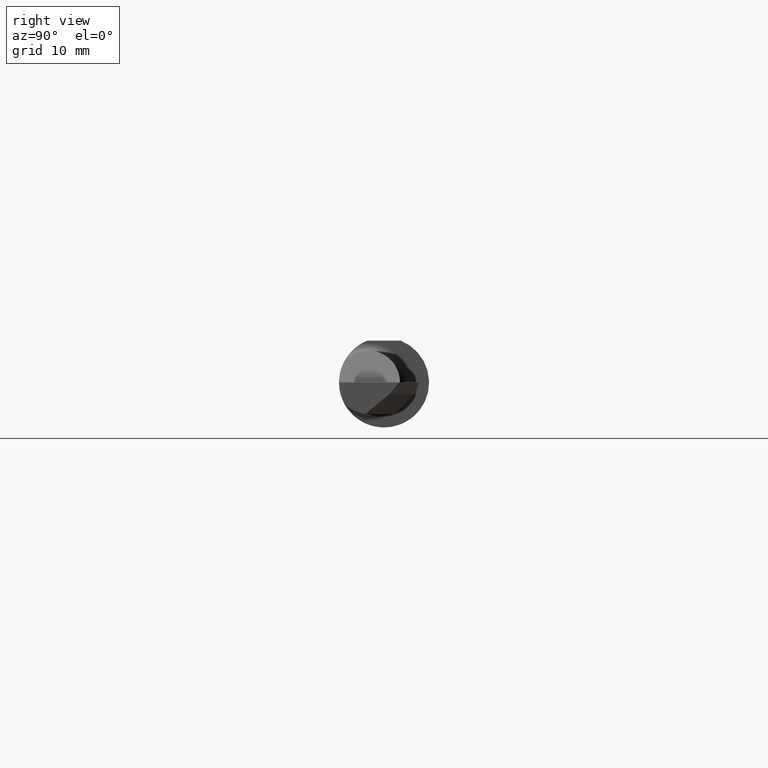
[diagram: clean part render]
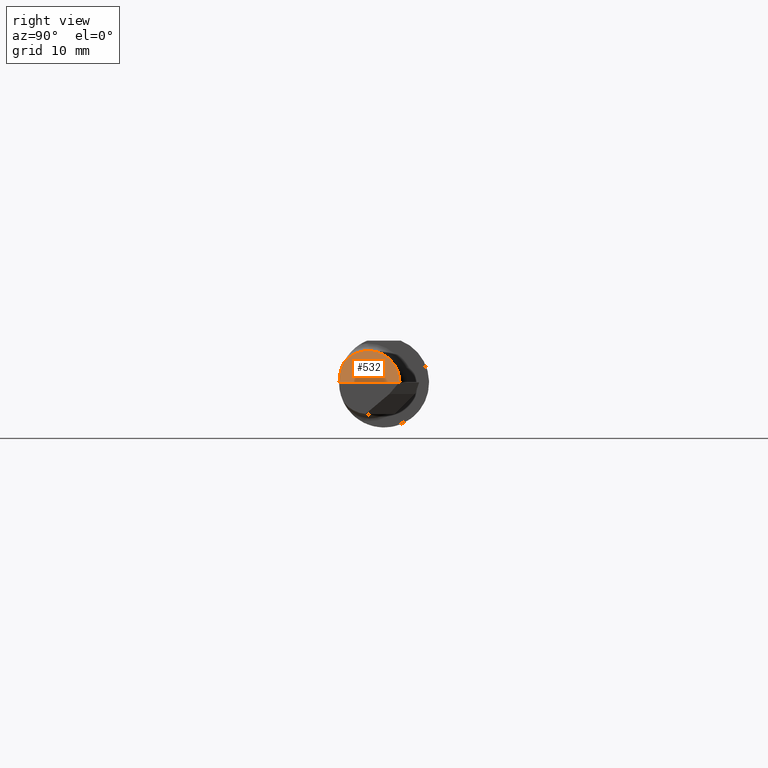
[diagram: same view with one face highlighted and labeled with its STEP entity id]
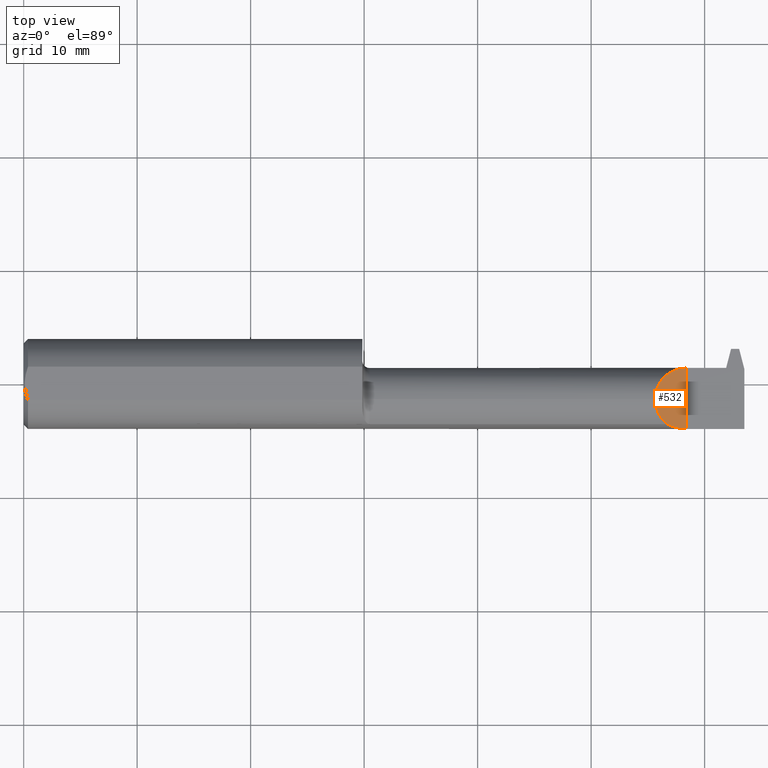
[diagram: same view with one face highlighted and labeled with its STEP entity id]
A machine part, right view. The second image highlights one B-rep face of the part: STEP entity #532.
A second angle (top view) of the same face is appended — the face is thin or edge-on in the first view.
In plain terms, the highlighted planar face has unit normal (-0.7071, 0, -0.7071).
Its self-contained STEP definition (entity closure, byte-faithful):
#43 = CARTESIAN_POINT ( 'NONE',  ( 2.189999999999999947, -0.08835990389925882371, 0.1100000000000000283 ) ) ;
#136 = CARTESIAN_POINT ( 'NONE',  ( 2.300000000000000266, -0.1560999999999999888, -3.918740332231607202E-17 ) ) ;
#185 = CARTESIAN_POINT ( 'NONE',  ( 2.204937869678032847, -0.1191917229287704216, 0.09506213032196700330 ) ) ;
#223 = ORIENTED_EDGE ( 'NONE', *, *, #423, .T. ) ;
#227 = FACE_OUTER_BOUND ( 'NONE', #831, .T. ) ;
#307 = VERTEX_POINT ( 'NONE', #739 ) ;
#339 = CARTESIAN_POINT ( 'NONE',  ( 2.300000000000000266, 0.05590000000000006075, -3.918740332231607202E-17 ) ) ;
#356 = ORIENTED_EDGE ( 'NONE', *, *, #747, .T. ) ;
#362 =( BOUNDED_CURVE ( )  B_SPLINE_CURVE ( 3, ( #136, #839, #768, #636 ),
 .UNSPECIFIED., .F., .T. ) 
 B_SPLINE_CURVE_WITH_KNOTS ( ( 4, 4 ),
 ( 4.712388980384687898, 5.164365393897303314 ),
 .UNSPECIFIED. ) 
 CURVE ( )  GEOMETRIC_REPRESENTATION_ITEM ( )  RATIONAL_B_SPLINE_CURVE ( ( 1.000000000000000000, 0.9830487706143840043, 0.9830487706143840043, 1.000000000000000000 ) ) 
 REPRESENTATION_ITEM ( '' )  );
#395 = AXIS2_PLACEMENT_3D ( 'NONE', #712, #506, #567 ) ;
#404 = ORIENTED_EDGE ( 'NONE', *, *, #599, .F. ) ;
#407 = CARTESIAN_POINT ( 'NONE',  ( 2.235563491861040308, 0.05590000000000019259, 0.06443650813895937524 ) ) ;
#419 = CARTESIAN_POINT ( 'NONE',  ( 2.189999999999999947, 0.01033650813895969217, 0.1100000000000000283 ) ) ;
#423 = EDGE_CURVE ( 'NONE', #763, #552, #671, .T. ) ;
#424 = CARTESIAN_POINT ( 'NONE',  ( 2.231824208644646479, -0.1404253234750460488, 0.06817579135535328794 ) ) ;
#429 = CARTESIAN_POINT ( 'NONE',  ( 2.300000000000000266, -0.1560999999999999888, -3.918740332231607202E-17 ) ) ;
#436 =( BOUNDED_CURVE ( )  B_SPLINE_CURVE ( 3, ( #339, #407, #419, #477 ),
 .UNSPECIFIED., .F., .F. ) 
 B_SPLINE_CURVE_WITH_KNOTS ( ( 4, 4 ),
 ( 4.712388980384687009, 6.283185307179586232 ),
 .UNSPECIFIED. ) 
 CURVE ( )  GEOMETRIC_REPRESENTATION_ITEM ( )  RATIONAL_B_SPLINE_CURVE ( ( 1.000000000000000000, 0.8047378541243643824, 0.8047378541243643824, 1.000000000000000000 ) ) 
 REPRESENTATION_ITEM ( '' )  );
#477 = CARTESIAN_POINT ( 'NONE',  ( 2.189999999999999947, -0.05409999999999999531, 0.1100000000000000006 ) ) ;
#491 = CARTESIAN_POINT ( 'NONE',  ( 2.189999999999999947, -0.05409999999999999531, 0.1100000000000000006 ) ) ;
#506 = DIRECTION ( 'NONE',  ( -0.7071067811865489050, 0.000000000000000000, -0.7071067811865462405 ) ) ;
#517 = CARTESIAN_POINT ( 'NONE',  ( 2.189999999999999947, -0.05409999999999999531, 0.1100000000000000006 ) ) ;
#532 = ADVANCED_FACE ( 'NONE', ( #227 ), #572, .F. ) ;
#552 = VERTEX_POINT ( 'NONE', #846 ) ;
#567 = DIRECTION ( 'NONE',  ( -0.7071067811865461294, 0.000000000000000000, 0.7071067811865487940 ) ) ;
#572 = PLANE ( 'NONE',  #395 ) ;
#586 = VERTEX_POINT ( 'NONE', #429 ) ;
#594 = CARTESIAN_POINT ( 'NONE',  ( 2.300000000000000266, 0.1650000000000000078, -3.918740332231607202E-17 ) ) ;
#599 = EDGE_CURVE ( 'NONE', #586, #552, #362, .T. ) ;
#635 = VECTOR ( 'NONE', #727, 39.37007874015748143 ) ;
#636 = CARTESIAN_POINT ( 'NONE',  ( 2.231824208644646479, -0.1404253234750460488, 0.06817579135535328794 ) ) ;
#654 = LINE ( 'NONE', #594, #635 ) ;
#671 =( BOUNDED_CURVE ( )  B_SPLINE_CURVE ( 3, ( #491, #43, #185, #424 ),
 .UNSPECIFIED., .F., .T. ) 
 B_SPLINE_CURVE_WITH_KNOTS ( ( 4, 4 ),
 ( 0.000000000000000000, 0.9023340896873542905 ),
 .UNSPECIFIED. ) 
 CURVE ( )  GEOMETRIC_REPRESENTATION_ITEM ( )  RATIONAL_B_SPLINE_CURVE ( ( 1.000000000000000000, 0.9332925766550594915, 0.9332925766550594915, 1.000000000000000000 ) ) 
 REPRESENTATION_ITEM ( '' )  );
#706 = ORIENTED_EDGE ( 'NONE', *, *, #800, .T. ) ;
#712 = CARTESIAN_POINT ( 'NONE',  ( 2.154900000000000038, 0.1000000000000000056, 0.1450999999999999790 ) ) ;
#727 = DIRECTION ( 'NONE',  ( -0.000000000000000000, 1.000000000000000000, -0.000000000000000000 ) ) ;
#739 = CARTESIAN_POINT ( 'NONE',  ( 2.300000000000000266, 0.05590000000000006075, -3.918740332231607202E-17 ) ) ;
#747 = EDGE_CURVE ( 'NONE', #586, #307, #654, .T. ) ;
#763 = VERTEX_POINT ( 'NONE', #517 ) ;
#768 = CARTESIAN_POINT ( 'NONE',  ( 2.253162613644221768, -0.1507850122484572508, 0.04683738635577809617 ) ) ;
#800 = EDGE_CURVE ( 'NONE', #307, #763, #436, .T. ) ;
#831 = EDGE_LOOP ( 'NONE', ( #356, #706, #223, #404 ) ) ;
#839 = CARTESIAN_POINT ( 'NONE',  ( 2.276279741160605941, -0.1561000000000000165, 0.02372025883939345506 ) ) ;
#846 = CARTESIAN_POINT ( 'NONE',  ( 2.231824208644646479, -0.1404253234750460488, 0.06817579135535328794 ) ) ;